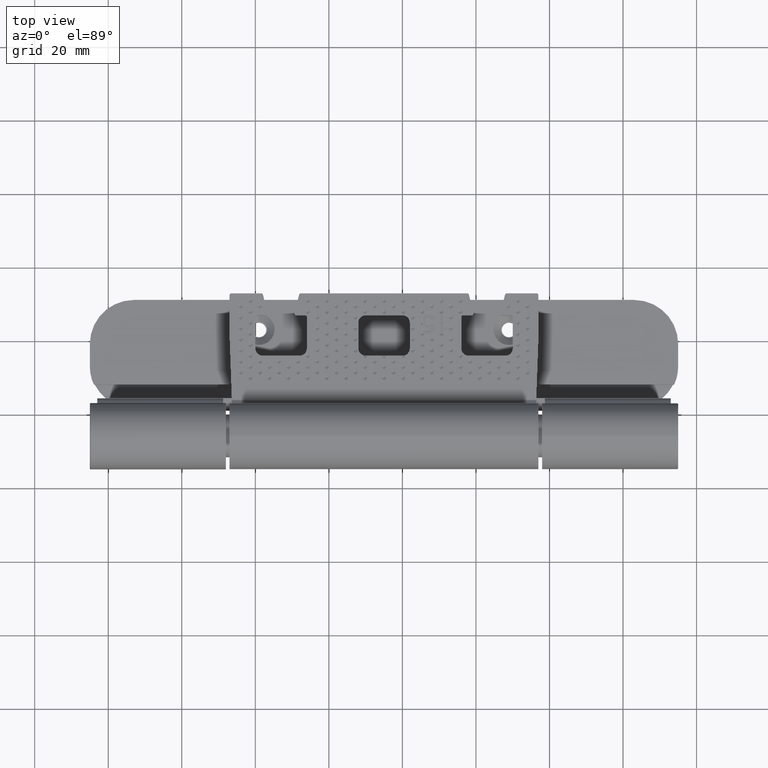
[diagram: clean part render]
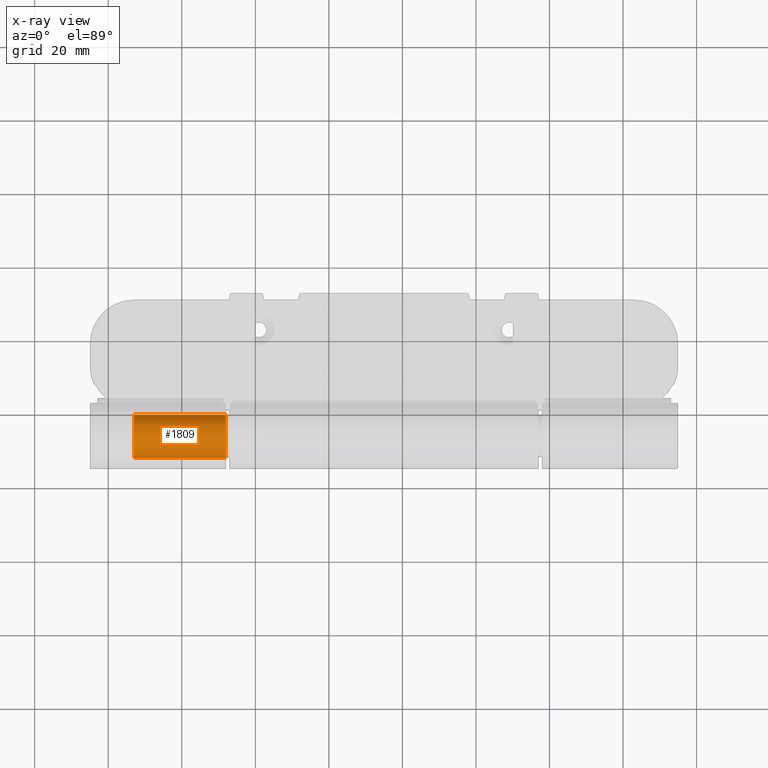
[diagram: x-ray — body ghosted, one internal face saturated and labeled with its STEP entity id]
A machine part, top view, then the same camera in x-ray: the body is ghosted and one INTERNAL B-rep face — a face not visible from any outside direction — is saturated and labeled: STEP entity #1809.
In plain terms, the highlighted cylindrical surface (edge-blend (fillet) strip) has radius 6 mm, axis along (1, -0, 0).
Its self-contained STEP definition (entity closure, byte-faithful):
#1070 = CARTESIAN_POINT ( 'NONE',  ( 24.99999999999996803, 8.340550472496488510E-15, 5.999999999999990230 ) ) ;
#1809 = ADVANCED_FACE ( 'NONE', ( #8413 ), #33419, .F. ) ;
#3213 = VERTEX_POINT ( 'NONE', #21818 ) ;
#4263 = CARTESIAN_POINT ( 'NONE',  ( -1.965414019271650104E-18, -3.330669073875469621E-16, 6.000000000000000000 ) ) ;
#6394 = EDGE_CURVE ( 'NONE', #37338, #49022, #35409, .T. ) ;
#7995 = CARTESIAN_POINT ( 'NONE',  ( 0.000000000000000000, 0.000000000000000000, 0.000000000000000000 ) ) ;
#8413 = FACE_OUTER_BOUND ( 'NONE', #23238, .T. ) ;
#9712 = ORIENTED_EDGE ( 'NONE', *, *, #51479, .T. ) ;
#10002 = CARTESIAN_POINT ( 'NONE',  ( 24.99999999999996803, 8.673617379884035472E-15, -9.540979117872439019E-15 ) ) ;
#12289 = DIRECTION ( 'NONE',  ( -1.000000000000000000, 2.492138128341370207E-17, 3.275690032116550253E-19 ) ) ;
#16042 = CIRCLE ( 'NONE', #26712, 6.000000000000000000 ) ;
#16158 = DIRECTION ( 'NONE',  ( -1.000000000000000000, 2.492138128341370207E-17, 3.275690032116550253E-19 ) ) ;
#18082 = VERTEX_POINT ( 'NONE', #4263 ) ;
#19302 = EDGE_CURVE ( 'NONE', #49022, #18082, #24797, .T. ) ;
#21818 = CARTESIAN_POINT ( 'NONE',  ( -1.965414019269635966E-18, 1.180017379942116968E-14, -6.000000000000000000 ) ) ;
#22092 = VECTOR ( 'NONE', #33371, 1000.000000000000000 ) ;
#22924 = VECTOR ( 'NONE', #16158, 1000.000000000000000 ) ;
#23238 = EDGE_LOOP ( 'NONE', ( #29461, #51780, #9712, #32838 ) ) ;
#24797 = LINE ( 'NONE', #54203, #22924 ) ;
#25923 = CARTESIAN_POINT ( 'NONE',  ( 25.49999999999996803, 1.040834085586084257E-14, -8.673617379884035472E-15 ) ) ;
#26582 = AXIS2_PLACEMENT_3D ( 'NONE', #10002, #38648, #26976 ) ;
#26712 = AXIS2_PLACEMENT_3D ( 'NONE', #7995, #37705, #54926 ) ;
#26976 = DIRECTION ( 'NONE',  ( 0.000000000000000000, -5.551115123125787632E-17, 1.000000000000000000 ) ) ;
#29461 = ORIENTED_EDGE ( 'NONE', *, *, #6394, .F. ) ;
#29499 = CARTESIAN_POINT ( 'NONE',  ( 24.99999999999996803, 9.741472366759994901E-15, -6.000000000000009770 ) ) ;
#32838 = ORIENTED_EDGE ( 'NONE', *, *, #19302, .F. ) ;
#33371 = DIRECTION ( 'NONE',  ( -1.000000000000000000, 2.492138128341370207E-17, 3.275690032116550253E-19 ) ) ;
#33419 = CYLINDRICAL_SURFACE ( 'NONE', #37768, 6.000000000000000000 ) ;
#34998 = EDGE_CURVE ( 'NONE', #37338, #3213, #54472, .T. ) ;
#35409 = CIRCLE ( 'NONE', #26582, 6.000000000000000000 ) ;
#37338 = VERTEX_POINT ( 'NONE', #29499 ) ;
#37705 = DIRECTION ( 'NONE',  ( -1.000000000000000000, 2.492138128341370207E-17, 3.275690032116550253E-19 ) ) ;
#37768 = AXIS2_PLACEMENT_3D ( 'NONE', #25923, #12289, #46202 ) ;
#38648 = DIRECTION ( 'NONE',  ( -1.000000000000000000, 2.492138128341370207E-17, 3.275690032116550253E-19 ) ) ;
#45881 = CARTESIAN_POINT ( 'NONE',  ( 25.49999999999996803, 1.147619584273680200E-14, -6.000000000000008882 ) ) ;
#46202 = DIRECTION ( 'NONE',  ( 0.000000000000000000, -5.551115123125787632E-17, 1.000000000000000000 ) ) ;
#49022 = VERTEX_POINT ( 'NONE', #1070 ) ;
#51479 = EDGE_CURVE ( 'NONE', #3213, #18082, #16042, .T. ) ;
#51780 = ORIENTED_EDGE ( 'NONE', *, *, #34998, .T. ) ;
#54203 = CARTESIAN_POINT ( 'NONE',  ( 25.49999999999996803, 1.007527394847329560E-14, 5.999999999999991118 ) ) ;
#54472 = LINE ( 'NONE', #45881, #22092 ) ;
#54926 = DIRECTION ( 'NONE',  ( -3.275690032119417000E-19, -5.551115123125782702E-17, 1.000000000000000000 ) ) ;